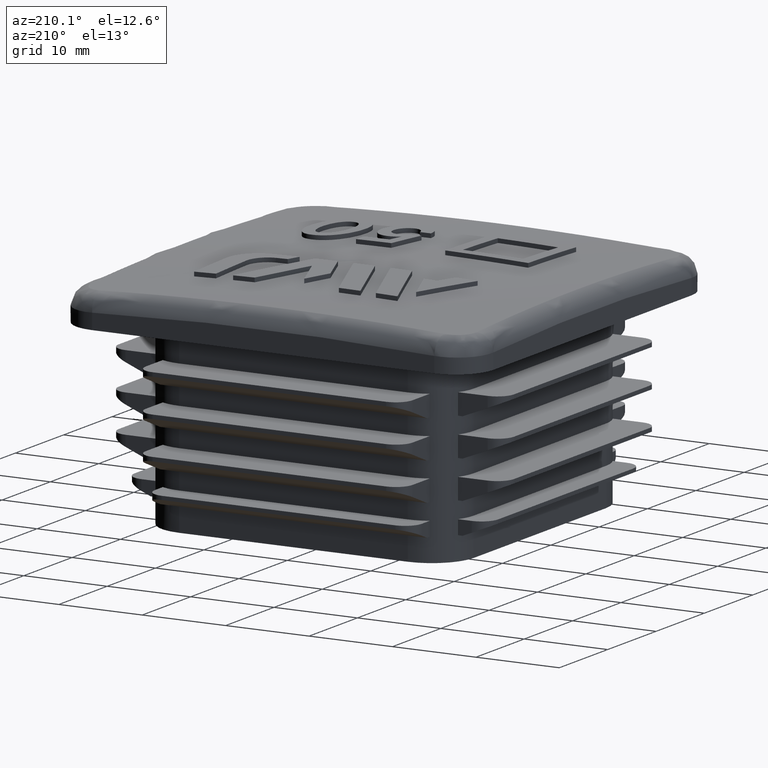
[diagram: clean part render]
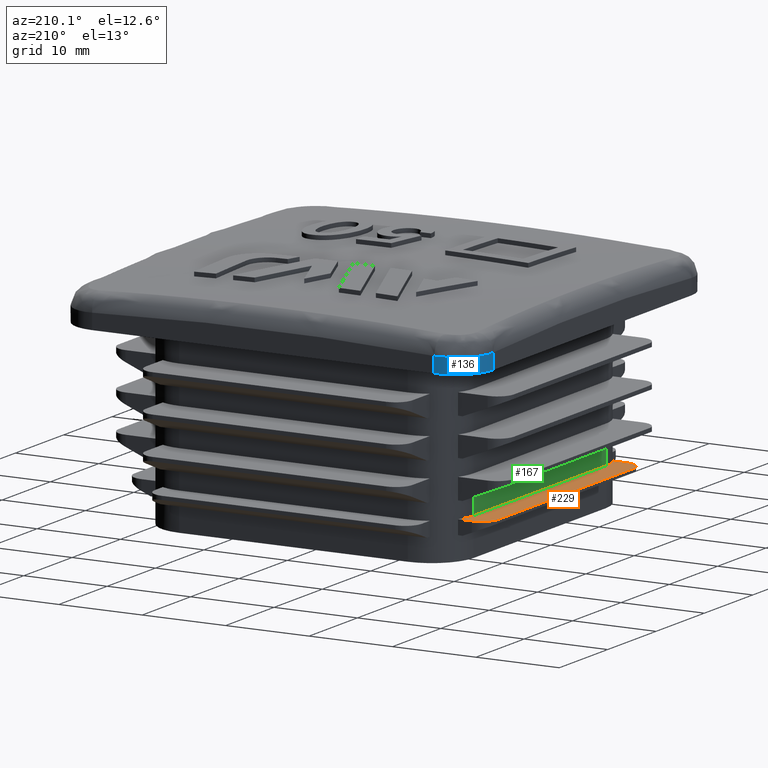
[diagram: same view with three faces highlighted in distinct colors, each labeled with its STEP entity id]
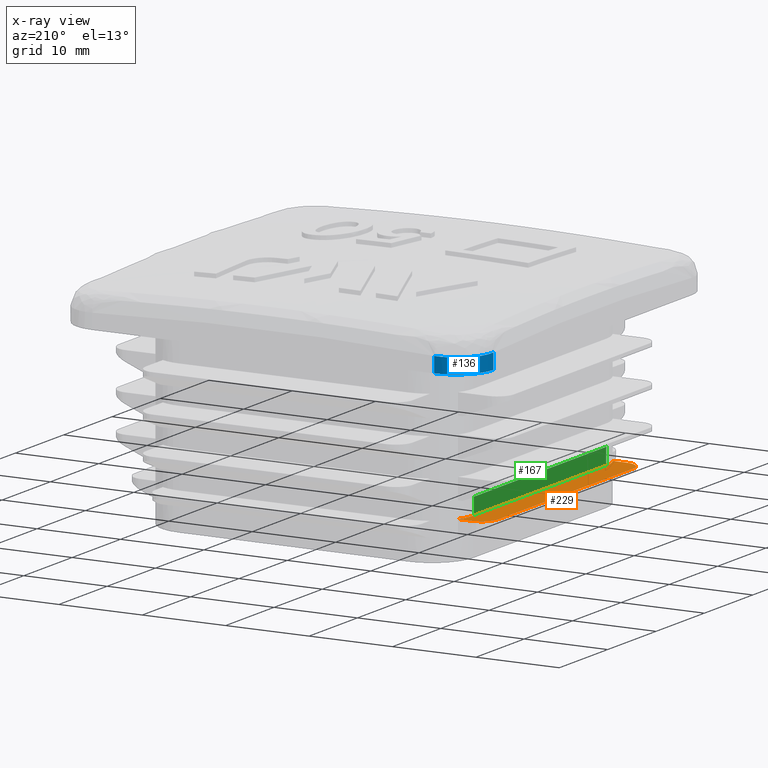
[diagram: x-ray of the same camera — body ghosted, the three highlighted faces saturated]
A machine part, auxiliary view with three faces highlighted in distinct colors.
The next image is the same camera in x-ray (body ghosted, the three faces saturated) — at least one of them is partly hidden behind the body in this view.
Their STEP definitions:

[orange] entity #229 — the highlighted planar face has unit normal (0, -0, -1).
#229 = ADVANCED_FACE( '', ( #670 ), #671, .F. );
#670 = FACE_OUTER_BOUND( '', #3130, .T. );
#671 = PLANE( '', #3131 );
#3130 = EDGE_LOOP( '', ( #4708, #4709, #4710, #4711, #4712, #4713, #4714, #4715 ) );
#3131 = AXIS2_PLACEMENT_3D( '', #4716, #4717, #4718 );
#4708 = ORIENTED_EDGE( '', *, *, #5868, .F. );
#4709 = ORIENTED_EDGE( '', *, *, #5862, .F. );
#4710 = ORIENTED_EDGE( '', *, *, #5908, .F. );
#4711 = ORIENTED_EDGE( '', *, *, #6127, .F. );
#4712 = ORIENTED_EDGE( '', *, *, #6130, .T. );
#4713 = ORIENTED_EDGE( '', *, *, #6131, .T. );
#4714 = ORIENTED_EDGE( '', *, *, #6132, .T. );
#4715 = ORIENTED_EDGE( '', *, *, #6133, .T. );
#4716 = CARTESIAN_POINT( '', ( -21.8000000000000, 16.0000000000000, 4.50000000000000 ) );
#4717 = DIRECTION( '', ( 5.55111512312579E-017, -6.12303176911188E-017, -1.00000000000000 ) );
#4718 = DIRECTION( '', ( -1.00000000000000, 1.22460635382238E-016, -5.55111512312579E-017 ) );
#5862 = EDGE_CURVE( '', #6741, #6744, #6745, .T. );
#5868 = EDGE_CURVE( '', #6744, #6754, #6755, .F. );
#5908 = EDGE_CURVE( '', #6828, #6741, #6830, .F. );
#6127 = EDGE_CURVE( '', #7203, #6828, #7204, .T. );
#6130 = EDGE_CURVE( '', #7203, #7206, #7208, .F. );
#6131 = EDGE_CURVE( '', #7206, #7209, #7210, .T. );
#6132 = EDGE_CURVE( '', #7209, #7211, #7212, .F. );
#6133 = EDGE_CURVE( '', #7211, #6754, #7213, .T. );
#6741 = VERTEX_POINT( '', #9711 );
#6744 = VERTEX_POINT( '', #9715 );
#6745 = LINE( '', #9716, #9717 );
#6754 = VERTEX_POINT( '', #9731 );
#6755 = CIRCLE( '', #9732, 5.00000000000000 );
#6828 = VERTEX_POINT( '', #9825 );
#6830 = CIRCLE( '', #9828, 5.00000000000000 );
#7203 = VERTEX_POINT( '', #10347 );
#7204 = LINE( '', #10348, #10349 );
#7206 = VERTEX_POINT( '', #10352 );
#7208 = CIRCLE( '', #10355, 2.00000000000000 );
#7209 = VERTEX_POINT( '', #10356 );
#7210 = LINE( '', #10357, #10358 );
#7211 = VERTEX_POINT( '', #10359 );
#7212 = CIRCLE( '', #10360, 2.00000000000000 );
#7213 = LINE( '', #10361, #10362 );
#9711 = CARTESIAN_POINT( '', ( -18.7000000000000, 13.7000000000000, 4.50000000000000 ) );
#9715 = CARTESIAN_POINT( '', ( -18.7000000000000, -13.7000000000000, 4.50000000000000 ) );
#9716 = CARTESIAN_POINT( '', ( -18.7000000000000, 13.7000000000000, 4.50000000000000 ) );
#9717 = VECTOR( '', #10983, 1000.00000000000 );
#9731 = CARTESIAN_POINT( '', ( -18.1395945760846, -16.0000000000000, 4.50000000000000 ) );
#9732 = AXIS2_PLACEMENT_3D( '', #10989, #10990, #10991 );
#9825 = CARTESIAN_POINT( '', ( -18.1395945760846, 16.0000000000000, 4.50000000000000 ) );
#9828 = AXIS2_PLACEMENT_3D( '', #11067, #11068, #11069 );
#10347 = CARTESIAN_POINT( '', ( -19.8000000000000, 16.0000000000000, 4.50000000000000 ) );
#10348 = CARTESIAN_POINT( '', ( -21.8000000000000, 16.0000000000000, 4.50000000000000 ) );
#10349 = VECTOR( '', #11432, 1000.00000000000 );
#10352 = CARTESIAN_POINT( '', ( -21.8000000000000, 14.0000000000000, 4.50000000000000 ) );
#10355 = AXIS2_PLACEMENT_3D( '', #11435, #11436, #11437 );
#10356 = CARTESIAN_POINT( '', ( -21.8000000000000, -14.0000000000000, 4.50000000000000 ) );
#10357 = CARTESIAN_POINT( '', ( -21.8000000000000, 16.0000000000000, 4.50000000000000 ) );
#10358 = VECTOR( '', #11438, 1000.00000000000 );
#10359 = CARTESIAN_POINT( '', ( -19.8000000000000, -16.0000000000000, 4.50000000000000 ) );
#10360 = AXIS2_PLACEMENT_3D( '', #11439, #11440, #11441 );
#10361 = CARTESIAN_POINT( '', ( -21.8000000000000, -16.0000000000000, 4.50000000000000 ) );
#10362 = VECTOR( '', #11442, 1000.00000000000 );
#10983 = DIRECTION( '', ( 0.000000000000000, -1.00000000000000, 6.12303176911188E-017 ) );
#10989 = CARTESIAN_POINT( '', ( -13.7000000000000, -13.7000000000000, 4.50000000000000 ) );
#10990 = DIRECTION( '', ( 5.55111512312578E-017, -6.12303176911188E-017, -1.00000000000000 ) );
#10991 = DIRECTION( '', ( 0.000000000000000, 1.00000000000000, -6.12303176911188E-017 ) );
#11067 = CARTESIAN_POINT( '', ( -13.7000000000000, 13.7000000000000, 4.50000000000000 ) );
#11068 = DIRECTION( '', ( 5.55111512312578E-017, -6.12303176911188E-017, -1.00000000000000 ) );
#11069 = DIRECTION( '', ( 0.000000000000000, 1.00000000000000, -6.12303176911188E-017 ) );
#11432 = DIRECTION( '', ( 1.00000000000000, -1.22460635382238E-016, -1.66533453693773E-016 ) );
#11435 = CARTESIAN_POINT( '', ( -19.8000000000000, 14.0000000000000, 4.50000000000000 ) );
#11436 = DIRECTION( '', ( 5.55111512312578E-017, -6.12303176911188E-017, -1.00000000000000 ) );
#11437 = DIRECTION( '', ( -1.22460635382238E-016, -1.00000000000000, 6.12303176911188E-017 ) );
#11438 = DIRECTION( '', ( -1.22460635382238E-016, -1.00000000000000, 6.12303176911188E-017 ) );
#11439 = CARTESIAN_POINT( '', ( -19.8000000000000, -14.0000000000000, 4.50000000000000 ) );
#11440 = DIRECTION( '', ( 5.55111512312578E-017, -6.12303176911188E-017, -1.00000000000000 ) );
#11441 = DIRECTION( '', ( -1.22460635382238E-016, -1.00000000000000, 6.12303176911188E-017 ) );
#11442 = DIRECTION( '', ( 1.00000000000000, -1.22460635382238E-016, -1.66533453693773E-016 ) );

[blue] entity #136 — the highlighted cylindrical surface (partial cylindrical patch) has radius 4.5 mm, axis along (0, 0, -1).
#136 = ADVANCED_FACE( '', ( #482 ), #483, .T. );
#482 = FACE_OUTER_BOUND( '', #2266, .T. );
#483 = CYLINDRICAL_SURFACE( '', #2267, 4.50000000000000 );
#2266 = EDGE_LOOP( '', ( #3888, #3889, #3890, #3891 ) );
#2267 = AXIS2_PLACEMENT_3D( '', #3892, #3893, #3894 );
#3888 = ORIENTED_EDGE( '', *, *, #5791, .T. );
#3889 = ORIENTED_EDGE( '', *, *, #5730, .T. );
#3890 = ORIENTED_EDGE( '', *, *, #5792, .F. );
#3891 = ORIENTED_EDGE( '', *, *, #5720, .T. );
#3892 = CARTESIAN_POINT( '', ( -20.5000000000000, 20.5000000000000, -77.5471066848509 ) );
#3893 = DIRECTION( '', ( 0.000000000000000, 0.000000000000000, -1.00000000000000 ) );
#3894 = DIRECTION( '', ( 0.000000000000000, -1.00000000000000, 0.000000000000000 ) );
#5720 = EDGE_CURVE( '', #6533, #6531, #6534, .T. );
#5730 = EDGE_CURVE( '', #6545, #6548, #6550, .T. );
#5791 = EDGE_CURVE( '', #6531, #6545, #6634, .T. );
#5792 = EDGE_CURVE( '', #6533, #6548, #6635, .T. );
#6531 = VERTEX_POINT( '', #8760 );
#6533 = VERTEX_POINT( '', #8763 );
#6534 = CIRCLE( '', #8764, 4.50000000000000 );
#6545 = VERTEX_POINT( '', #8778 );
#6548 = VERTEX_POINT( '', #8797 );
#6550 = B_SPLINE_CURVE_WITH_KNOTS( '', 3, ( #8799, #8800, #8801, #8802, #8803, #8804, #8805, #8806, #8807, #8808, #8809, #8810, #8811, #8812, #8813, #8814, #8815, #8816, #8817, #8818, #8819, #8820, #8821, #8822, #8823, #8824, #8825, #8826, #8827, #8828, #8829, #8830, #8831, #8832, #8833, #8834, #8835, #8836, #8837, #8838, #8839, #8840, #8841, #8842, #8843, #8844, #8845, #8846, #8847 ), .UNSPECIFIED., .F., .F., ( 4, 1, 2, 2, 2, 1, 2, 1, 2, 2, 2, 2, 1, 1, 2, 2, 2, 2, 1, 2, 1, 2, 2, 2, 1, 2, 1, 2, 4 ), ( 3.46944695195361E-018, 0.000442954297359161, 0.000885908594718319, 0.000996647169058116, 0.00105201645622801, 0.00110738574339791, 0.00132886289207749, 0.00177181718943665, 0.00221477148679582, 0.00243624863547539, 0.00249161792264529, 0.00254698720981519, 0.00265772578415498, 0.00310068008151411, 0.00354363437887323, 0.00398658867623236, 0.00404195796340225, 0.00409732725057213, 0.00420806582491192, 0.00442954297359148, 0.00487249727095061, 0.00531545156830975, 0.00553692871698931, 0.00559229800415920, 0.00564766729132909, 0.00575840586566889, 0.00620136016302808, 0.00664431446038728, 0.00708726875774647 ), .UNSPECIFIED. );
#6634 = LINE( '', #9237, #9238 );
#6635 = LINE( '', #9239, #9240 );
#8760 = CARTESIAN_POINT( '', ( -25.0000000000000, 20.5000000000000, 22.0000000000000 ) );
#8763 = CARTESIAN_POINT( '', ( -20.5000000000000, 25.0000000000000, 22.0000000000000 ) );
#8764 = AXIS2_PLACEMENT_3D( '', #10818, #10819, #10820 );
#8778 = CARTESIAN_POINT( '', ( -25.0000000000000, 20.5000000000000, 23.8526878253238 ) );
#8797 = CARTESIAN_POINT( '', ( -20.5000000000000, 25.0000000000000, 23.8526878253238 ) );
#8799 = CARTESIAN_POINT( '', ( -25.0000000000000, 20.5000000000000, 23.8526878253239 ) );
#8800 = CARTESIAN_POINT( '', ( -25.0000000000000, 20.6485207728439, 23.8485093278901 ) );
#8801 = CARTESIAN_POINT( '', ( -24.9853310627444, 20.9439265958905, 23.8406104728753 ) );
#8802 = CARTESIAN_POINT( '', ( -24.9418551167326, 21.2361201787005, 23.8336116613763 ) );
#8803 = CARTESIAN_POINT( '', ( -24.9055817138584, 21.4177263343380, 23.8295218556472 ) );
#8804 = CARTESIAN_POINT( '', ( -24.8978709462711, 21.4539967077946, 23.8287181495581 ) );
#8805 = CARTESIAN_POINT( '', ( -24.8856156341827, 21.5083254206091, 23.8275341320655 ) );
#8806 = CARTESIAN_POINT( '', ( -24.8814190399243, 21.5264067345215, 23.8271433897695 ) );
#8807 = CARTESIAN_POINT( '', ( -24.8728146784354, 21.5624666470728, 23.8263707338077 ) );
#8808 = CARTESIAN_POINT( '', ( -24.8507675760014, 21.6523952195560, 23.8244603968221 ) );
#8809 = CARTESIAN_POINT( '', ( -24.8260573678380, 21.7412251272563, 23.8226558676005 ) );
#8810 = CARTESIAN_POINT( '', ( -24.7617300909477, 21.9523447584309, 23.8185245837972 ) );
#8811 = CARTESIAN_POINT( '', ( -24.6625899400031, 22.2283216201105, 23.8135474984541 ) );
#8812 = CARTESIAN_POINT( '', ( -24.5370729323206, 22.4934167108894, 23.8096187810812 ) );
#8813 = CARTESIAN_POINT( '', ( -24.4328939678329, 22.6880955300936, 23.8070714151610 ) );
#8814 = CARTESIAN_POINT( '', ( -24.3964911455787, 22.7522968297347, 23.8062889395935 ) );
#8815 = CARTESIAN_POINT( '', ( -24.3488528478374, 22.8316677554370, 23.8053957158161 ) );
#8816 = CARTESIAN_POINT( '', ( -24.3392183846726, 22.8474978787696, 23.8052213171802 ) );
#8817 = CARTESIAN_POINT( '', ( -24.3197346066569, 22.8790694884226, 23.8048810617703 ) );
#8818 = CARTESIAN_POINT( '', ( -24.3098787593302, 22.8948211095737, 23.8047151035942 ) );
#8819 = CARTESIAN_POINT( '', ( -24.2800601483092, 22.9418276978091, 23.8042312837386 ) );
#8820 = CARTESIAN_POINT( '', ( -24.1789258109273, 23.0969653829048, 23.8027111491555 ) );
#8821 = CARTESIAN_POINT( '', ( -23.9814719504856, 23.3624675834233, 23.8007956125753 ) );
#8822 = CARTESIAN_POINT( '', ( -23.7846077107031, 23.5794282678225, 23.8002298947123 ) );
#8823 = CARTESIAN_POINT( '', ( -23.5770412972747, 23.7868439459063, 23.8002341379152 ) );
#8824 = CARTESIAN_POINT( '', ( -23.4679078907969, 23.8857800729371, 23.8005211928674 ) );
#8825 = CARTESIAN_POINT( '', ( -23.3389208439811, 23.9915429169405, 23.8011749486420 ) );
#8826 = CARTESIAN_POINT( '', ( -23.3245024559560, 24.0032172022317, 23.8012521943971 ) );
#8827 = CARTESIAN_POINT( '', ( -23.2954916405885, 24.0264105514125, 23.8014159542843 ) );
#8828 = CARTESIAN_POINT( '', ( -23.2809260867458, 24.0379080934202, 23.8015023177700 ) );
#8829 = CARTESIAN_POINT( '', ( -23.2370665443071, 24.0720919699467, 23.8017746840522 ) );
#8830 = CARTESIAN_POINT( '', ( -23.1486741287156, 24.1392418415227, 23.8023726519382 ) );
#8831 = CARTESIAN_POINT( '', ( -23.0582848376403, 24.2027798808031, 23.8031284952598 ) );
#8832 = CARTESIAN_POINT( '', ( -22.8748860083776, 24.3251166089329, 23.8048473317708 ) );
#8833 = CARTESIAN_POINT( '', ( -22.6233792304418, 24.4756162623679, 23.8076905411592 ) );
#8834 = CARTESIAN_POINT( '', ( -22.3580625736617, 24.6011374142466, 23.8116253774471 ) );
#8835 = CARTESIAN_POINT( '', ( -22.1537990406396, 24.6857352863892, 23.8149934818115 ) );
#8836 = CARTESIAN_POINT( '', ( -22.0848302728991, 24.7123412146523, 23.8161858043620 ) );
#8837 = CARTESIAN_POINT( '', ( -21.9974954701261, 24.7435658838837, 23.8177650173668 ) );
#8838 = CARTESIAN_POINT( '', ( -21.9799621964609, 24.7497124668176, 23.8180854928141 ) );
#8839 = CARTESIAN_POINT( '', ( -21.9448733695693, 24.7617701837954, 23.8187336939919 ) );
#8840 = CARTESIAN_POINT( '', ( -21.8921819079216, 24.7795128456046, 23.8197173086238 ) );
#8841 = CARTESIAN_POINT( '', ( -21.8393168382496, 24.7962300038467, 23.8207346555092 ) );
#8842 = CARTESIAN_POINT( '', ( -21.6627181076853, 24.8496983836581, 23.8241999968282 ) );
#8843 = CARTESIAN_POINT( '', ( -21.3777220421114, 24.9208459452798, 23.8302182350909 ) );
#8844 = CARTESIAN_POINT( '', ( -21.0879595287214, 24.9638381217120, 23.8371622461119 ) );
#8845 = CARTESIAN_POINT( '', ( -20.7957991685450, 24.9926662502518, 23.8445718236367 ) );
#8846 = CARTESIAN_POINT( '', ( -20.6485203544585, 25.0000000000000, 23.8485093396609 ) );
#8847 = CARTESIAN_POINT( '', ( -20.5000000000000, 25.0000000000000, 23.8526878253238 ) );
#9237 = CARTESIAN_POINT( '', ( -25.0000000000000, 20.5000000000000, -77.5471066848509 ) );
#9238 = VECTOR( '', #10891, 1000.00000000000 );
#9239 = CARTESIAN_POINT( '', ( -20.5000000000000, 25.0000000000000, -77.5471066848509 ) );
#9240 = VECTOR( '', #10892, 1000.00000000000 );
#10818 = CARTESIAN_POINT( '', ( -20.5000000000000, 20.5000000000000, 22.0000000000000 ) );
#10819 = DIRECTION( '', ( 6.12303176911189E-017, 6.12303176911189E-017, 1.00000000000000 ) );
#10820 = DIRECTION( '', ( 1.00000000000000, 0.000000000000000, -6.12303176911189E-017 ) );
#10891 = DIRECTION( '', ( 0.000000000000000, 0.000000000000000, 1.00000000000000 ) );
#10892 = DIRECTION( '', ( 0.000000000000000, 0.000000000000000, 1.00000000000000 ) );

[green] entity #167 — the highlighted planar face has unit normal (-1, 0, 0).
#167 = ADVANCED_FACE( '', ( #546 ), #547, .T. );
#546 = FACE_OUTER_BOUND( '', #3006, .T. );
#547 = PLANE( '', #3007 );
#3006 = EDGE_LOOP( '', ( #4098, #4099, #4100, #4101 ) );
#3007 = AXIS2_PLACEMENT_3D( '', #4102, #4103, #4104 );
#4098 = ORIENTED_EDGE( '', *, *, #5861, .F. );
#4099 = ORIENTED_EDGE( '', *, *, #5862, .T. );
#4100 = ORIENTED_EDGE( '', *, *, #5863, .T. );
#4101 = ORIENTED_EDGE( '', *, *, #5864, .T. );
#4102 = CARTESIAN_POINT( '', ( -18.7000000000000, 13.7000000000000, 0.000000000000000 ) );
#4103 = DIRECTION( '', ( -1.00000000000000, 0.000000000000000, 0.000000000000000 ) );
#4104 = DIRECTION( '', ( 0.000000000000000, 1.00000000000000, 0.000000000000000 ) );
#5861 = EDGE_CURVE( '', #6741, #6742, #6743, .T. );
#5862 = EDGE_CURVE( '', #6741, #6744, #6745, .T. );
#5863 = EDGE_CURVE( '', #6744, #6746, #6747, .T. );
#5864 = EDGE_CURVE( '', #6746, #6742, #6748, .T. );
#6741 = VERTEX_POINT( '', #9711 );
#6742 = VERTEX_POINT( '', #9712 );
#6743 = LINE( '', #9713, #9714 );
#6744 = VERTEX_POINT( '', #9715 );
#6745 = LINE( '', #9716, #9717 );
#6746 = VERTEX_POINT( '', #9718 );
#6747 = LINE( '', #9719, #9720 );
#6748 = LINE( '', #9721, #9722 );
#9711 = CARTESIAN_POINT( '', ( -18.7000000000000, 13.7000000000000, 4.50000000000000 ) );
#9712 = CARTESIAN_POINT( '', ( -18.7000000000000, 13.7000000000000, 6.50000000000001 ) );
#9713 = CARTESIAN_POINT( '', ( -18.7000000000000, 13.7000000000000, 0.000000000000000 ) );
#9714 = VECTOR( '', #10982, 1000.00000000000 );
#9715 = CARTESIAN_POINT( '', ( -18.7000000000000, -13.7000000000000, 4.50000000000000 ) );
#9716 = CARTESIAN_POINT( '', ( -18.7000000000000, 13.7000000000000, 4.50000000000000 ) );
#9717 = VECTOR( '', #10983, 1000.00000000000 );
#9718 = CARTESIAN_POINT( '', ( -18.7000000000000, -13.7000000000000, 6.50000000000002 ) );
#9719 = CARTESIAN_POINT( '', ( -18.7000000000000, -13.7000000000000, 0.000000000000000 ) );
#9720 = VECTOR( '', #10984, 1000.00000000000 );
#9721 = CARTESIAN_POINT( '', ( -18.7000000000000, 13.7000000000000, 6.50000000000001 ) );
#9722 = VECTOR( '', #10985, 1000.00000000000 );
#10982 = DIRECTION( '', ( 0.000000000000000, 0.000000000000000, 1.00000000000000 ) );
#10983 = DIRECTION( '', ( 0.000000000000000, -1.00000000000000, 6.12303176911188E-017 ) );
#10984 = DIRECTION( '', ( 0.000000000000000, 0.000000000000000, 1.00000000000000 ) );
#10985 = DIRECTION( '', ( 0.000000000000000, 1.00000000000000, -1.17530093642580E-017 ) );